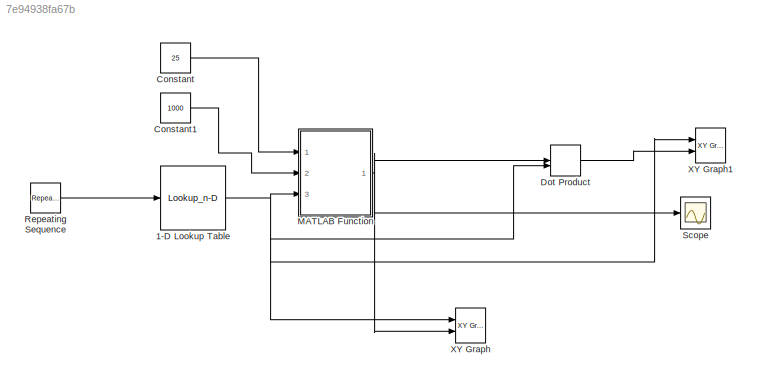
MODEL slx_7e94938fa67b
KIND model
CONFIG AbsTol = auto
CONFIG EnableMultiTasking = off
CONFIG FixedStep = auto
CONFIG MaxStep = auto
CONFIG MinStep = auto
CONFIG RelTol = 1e-3
CONFIG SampleTimeConstraint = Unconstrained
CONFIG SolverName = VariableStepAuto
CONFIG StartTime = 0.0
CONFIG StopTime = 1.99
WORKSPACE source: mxarray member
WORKSPACE V = [32.9 32.8 32.7 32.6 32.5 32.4 32.3 32.2 32.1 32 31.9 31.8 ... (330 elements, 1x330)]
BLOCK [Lookup_n-D] 1-D Lookup Table
  BreakpointsForDimension1 = [1:330]
  InputPortMap = u0
  InputSameDT = off
  InternalRulePriority = Speed
  NumberOfTableDimensions = 1
  Ports = [1, 1]
  RndMeth = Simplest
  Table = V([1:330])
BLOCK [Constant] Constant
  Value = 25
BLOCK [Constant] Constant1
  Value = 1000
BLOCK [DotProduct] Dot Product
  OutDataTypeStr = Inherit: Inherit via internal rule
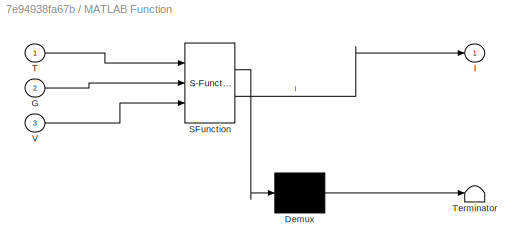
BLOCK [SubSystem] MATLAB Function
  ErrorFcn = Stateflow.Translate.translate
  PermitHierarchicalResolution = ExplicitOnly
  Ports = [3, 1]
  RequestExecContextInheritance = off
  SFBlockType = MATLAB Function
  TreatAsAtomicUnit = on
BLOCK [Demux] MATLAB Function/ Demux 
  Outputs = 1
  Ports = [1, 1]
BLOCK [S-Function] MATLAB Function/ SFunction 
  EnableBusSupport = on
  FunctionName = sf_sfun
  PortCounts = [3 2]
  Ports = [3, 2]
  SFcnIsStateOwnerBlock = off
  SFunctionDeploymentMode = off
  Tag = Stateflow S-Function 2
BLOCK [Terminator] MATLAB Function/ Terminator 
BLOCK [Inport] MATLAB Function/G
  Port = 2
BLOCK [Outport] MATLAB Function/I
BLOCK [Inport] MATLAB Function/T
BLOCK [Inport] MATLAB Function/V
  Port = 3
BLOCK [Reference] Repeating Sequence  REF=simulink/Sources/Repeating
Sequence
  Ports = [0, 1]
  SourceBlock = simulink/Sources/Repeating\nSequence
  SourceProductBaseCode = SL
  SourceType = Repeating table
BLOCK [Scope] Scope
  Floating = off
  NumInputPorts = 1
  Ports = [1]
  ScopeSpecificationString = Simulink.scopes.TimeScopeBlockCfg('CurrentConfiguration', extmgr.ConfigurationSet(extmgr.Configuration('Core','General UI',true),extmgr.Configuration('Core','Source UI',true),extmgr.Configuration('Sources','WiredSimulink',true),extmgr.Configuration('Visuals','Time Domain',true,'SerializedDisplays',{struct('MinYLimReal','-0.65081','MaxYLimReal','0.38045','YLabelReal','','MinYLimMag','0.00000','MaxY...<+1335ch>
BLOCK [Reference] XY Graph  REF=simulink/Sinks/XY Graph
  Ports = [2]
  SourceBlock = simulink/Sinks/XY Graph
  SourceProductBaseCode = SL
  SourceType = XY scope.
BLOCK [Reference] XY Graph1  REF=simulink/Sinks/XY Graph
  Ports = [2]
  SourceBlock = simulink/Sinks/XY Graph
  SourceProductBaseCode = SL
  SourceType = XY scope.
NET 1-D Lookup Table:1 -> Dot Product:2, MATLAB Function:3, XY Graph1:1, XY Graph:1
LINE Constant1:1 -> MATLAB Function:2
LINE Constant:1 -> MATLAB Function:1
LINE Dot Product:1 -> XY Graph1:2
NET MATLAB Function:1 -> Dot Product:1, Scope:1, XY Graph:2
LINE Repeating Sequence:1 -> 1-D Lookup Table:1
note: NET lines group one-source signal fan-out (src -> all destinations, sorted); 1:1 wires keep LINE
CHART MATLAB Function states=1 transitions=1
  STATE_LABEL 'eML_blk_kernel()'
  STATE_LABEL 'SCRIPT:\nfunction I = fcn(T,G,V)\n\nK=1.38065e-23; %boltzman constant\nq=1.602e-19; %charge of electron\nIscn=8.21;\nVocn=32.9;\n%Kv=-0.123;\nKi=0.0032;\nNs=54;\nT=T+273;\nTn=25+273;\nGn=1050;\na=1.3;\nEg=1.12;\n%G=1000;\nRs=0.221;\nRp=415.405;\n\n\nI=0;\n\nVtn=Ns*(K*Tn/q);\nIon= Iscn/((exp(Vocn/(a*Vtn)))-1);\nIo_part=((q*Eg/(a*K))*((1/Tn)-(1/T)));\nIo=Ion*((Tn/T)^3)*exp(Io_part);\n\nIpvn=Iscn;\nIpv=(Ipvn+Ki*(T-Tn))*(G/Gn);\n...<+85ch>'
CHART  states=0 transitions=0
